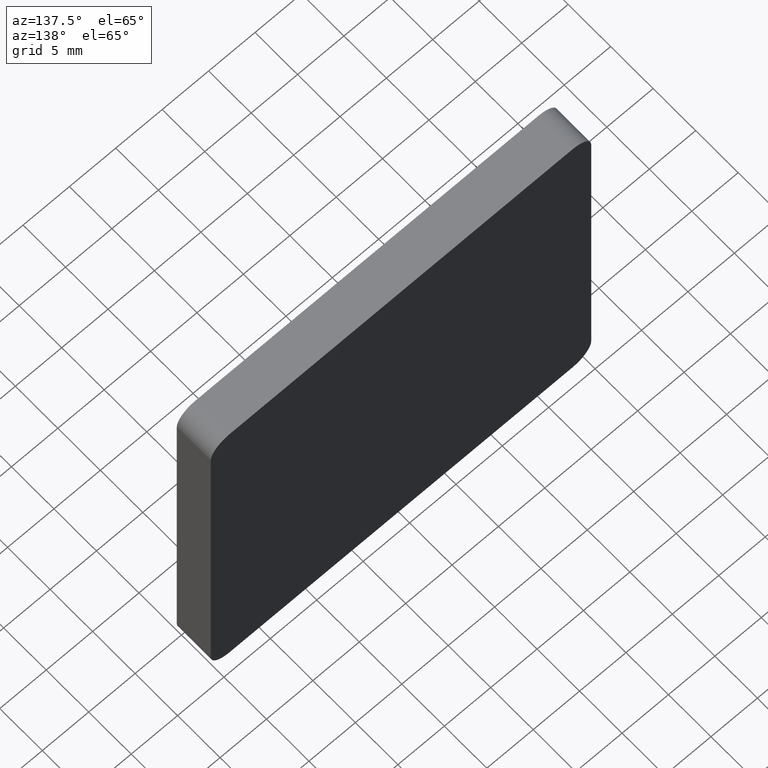
[diagram: clean part render]
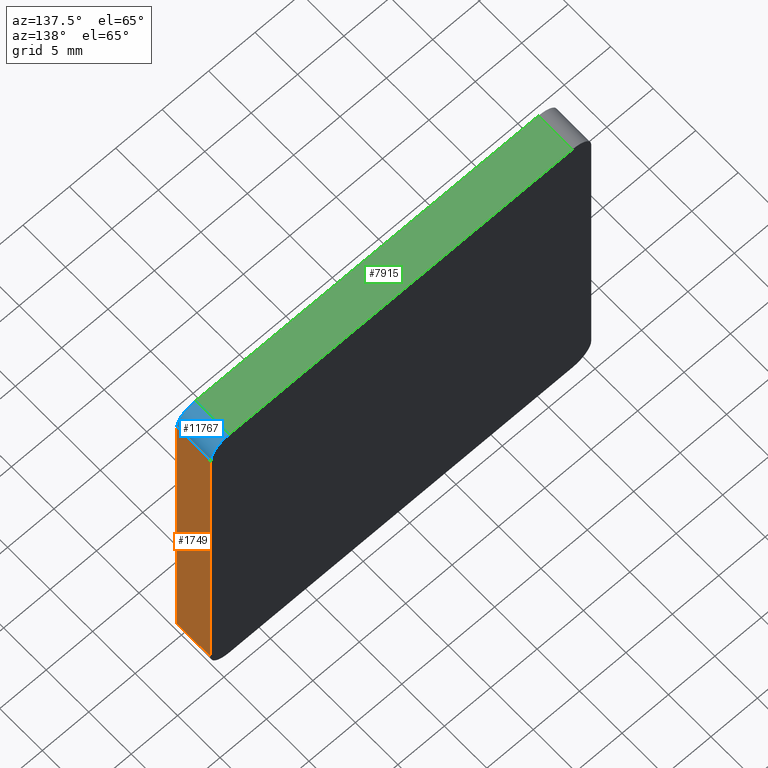
[diagram: same view with three faces highlighted in distinct colors, each labeled with its STEP entity id]
A machine part, auxiliary view with three faces highlighted in distinct colors.
Their STEP definitions:

[orange] entity #1749 — the highlighted planar face has unit normal (-1, 0, 0).
#103 = VERTEX_POINT ( 'NONE', #11090 ) ;
#621 = EDGE_CURVE ( 'NONE', #13598, #13920, #4240, .T. ) ;
#754 = FACE_OUTER_BOUND ( 'NONE', #8079, .T. ) ;
#1327 = CARTESIAN_POINT ( 'NONE',  ( 20.49999999999999645, 4.000000000000000000, -20.49999999999999645 ) ) ;
#1749 = ADVANCED_FACE ( 'NONE', ( #754 ), #2487, .F. ) ;
#2051 = DIRECTION ( 'NONE',  ( -1.692413147294445970E-16, -0.000000000000000000, -1.000000000000000000 ) ) ;
#2487 = PLANE ( 'NONE',  #14702 ) ;
#2649 = EDGE_CURVE ( 'NONE', #103, #13598, #2898, .T. ) ;
#2898 = LINE ( 'NONE', #11364, #4184 ) ;
#3138 = DIRECTION ( 'NONE',  ( 0.000000000000000000, -1.000000000000000000, 0.000000000000000000 ) ) ;
#3246 = CARTESIAN_POINT ( 'NONE',  ( 20.49999999999999645, 4.000000000000000000, -18.49999999999999645 ) ) ;
#4184 = VECTOR ( 'NONE', #6819, 1000.000000000000000 ) ;
#4240 = LINE ( 'NONE', #3246, #5519 ) ;
#5109 = VECTOR ( 'NONE', #2051, 1000.000000000000000 ) ;
#5519 = VECTOR ( 'NONE', #13622, 1000.000000000000000 ) ;
#5705 = ORIENTED_EDGE ( 'NONE', *, *, #2649, .T. ) ;
#6224 = LINE ( 'NONE', #12625, #13346 ) ;
#6819 = DIRECTION ( 'NONE',  ( -1.692413147294445970E-16, -0.000000000000000000, -1.000000000000000000 ) ) ;
#7132 = ORIENTED_EDGE ( 'NONE', *, *, #11552, .T. ) ;
#7249 = DIRECTION ( 'NONE',  ( 1.692413147294445970E-16, 0.000000000000000000, 1.000000000000000000 ) ) ;
#7939 = CARTESIAN_POINT ( 'NONE',  ( 20.49999999999999645, 0.000000000000000000, -18.49999999999999645 ) ) ;
#8079 = EDGE_LOOP ( 'NONE', ( #5705, #15005, #14323, #7132 ) ) ;
#8830 = CARTESIAN_POINT ( 'NONE',  ( 20.49999999999999645, 4.000000000000000000, -20.49999999999999645 ) ) ;
#9686 = VERTEX_POINT ( 'NONE', #11786 ) ;
#10746 = EDGE_CURVE ( 'NONE', #9686, #13920, #13517, .T. ) ;
#11090 = CARTESIAN_POINT ( 'NONE',  ( 20.50000000000000355, 0.000000000000000000, 18.50000000000000355 ) ) ;
#11235 = CARTESIAN_POINT ( 'NONE',  ( 20.49999999999999645, 4.000000000000000000, -18.49999999999999645 ) ) ;
#11364 = CARTESIAN_POINT ( 'NONE',  ( 20.49999999999999645, 0.000000000000000000, -20.49999999999999645 ) ) ;
#11552 = EDGE_CURVE ( 'NONE', #9686, #103, #6224, .T. ) ;
#11786 = CARTESIAN_POINT ( 'NONE',  ( 20.50000000000000355, 4.000000000000000000, 18.50000000000000355 ) ) ;
#12625 = CARTESIAN_POINT ( 'NONE',  ( 20.50000000000000355, 4.000000000000000000, 18.50000000000000355 ) ) ;
#13346 = VECTOR ( 'NONE', #3138, 1000.000000000000000 ) ;
#13517 = LINE ( 'NONE', #8830, #5109 ) ;
#13598 = VERTEX_POINT ( 'NONE', #7939 ) ;
#13622 = DIRECTION ( 'NONE',  ( -0.000000000000000000, 1.000000000000000000, -0.000000000000000000 ) ) ;
#13920 = VERTEX_POINT ( 'NONE', #11235 ) ;
#14233 = DIRECTION ( 'NONE',  ( -1.000000000000000000, 0.000000000000000000, 1.692413147294445970E-16 ) ) ;
#14323 = ORIENTED_EDGE ( 'NONE', *, *, #10746, .F. ) ;
#14702 = AXIS2_PLACEMENT_3D ( 'NONE', #1327, #14233, #7249 ) ;
#15005 = ORIENTED_EDGE ( 'NONE', *, *, #621, .T. ) ;

[blue] entity #11767 — the highlighted cylindrical surface (edge-blend (fillet) strip) has radius 2 mm, axis along (0, -1, 0).
#3 = EDGE_CURVE ( 'NONE', #3946, #9686, #14090, .T. ) ;
#91 = CARTESIAN_POINT ( 'NONE',  ( 18.50000000000000355, 0.000000000000000000, 20.50000000000000355 ) ) ;
#103 = VERTEX_POINT ( 'NONE', #11090 ) ;
#288 = CARTESIAN_POINT ( 'NONE',  ( 18.50000000000000355, 4.000000000000000000, 18.50000000000000355 ) ) ;
#1268 = CYLINDRICAL_SURFACE ( 'NONE', #13047, 2.000000000000001776 ) ;
#1495 = DIRECTION ( 'NONE',  ( 0.000000000000000000, 0.000000000000000000, 1.000000000000000000 ) ) ;
#2405 = DIRECTION ( 'NONE',  ( 0.000000000000000000, 0.000000000000000000, -1.000000000000000000 ) ) ;
#2556 = CARTESIAN_POINT ( 'NONE',  ( 18.50000000000000355, 4.000000000000000000, 20.50000000000000355 ) ) ;
#2811 = EDGE_CURVE ( 'NONE', #7274, #3946, #11475, .T. ) ;
#3138 = DIRECTION ( 'NONE',  ( 0.000000000000000000, -1.000000000000000000, 0.000000000000000000 ) ) ;
#3653 = ORIENTED_EDGE ( 'NONE', *, *, #12659, .F. ) ;
#3946 = VERTEX_POINT ( 'NONE', #2556 ) ;
#4821 = DIRECTION ( 'NONE',  ( -0.000000000000000000, -1.000000000000000000, -0.000000000000000000 ) ) ;
#4910 = VECTOR ( 'NONE', #13717, 1000.000000000000000 ) ;
#4968 = CARTESIAN_POINT ( 'NONE',  ( 18.50000000000000355, 4.000000000000000000, 18.50000000000000355 ) ) ;
#5470 = EDGE_LOOP ( 'NONE', ( #11571, #8715, #3653, #11813 ) ) ;
#5944 = CARTESIAN_POINT ( 'NONE',  ( 18.50000000000000355, 0.000000000000000000, 18.50000000000000355 ) ) ;
#5990 = DIRECTION ( 'NONE',  ( 0.000000000000000000, 0.000000000000000000, 1.000000000000000000 ) ) ;
#6224 = LINE ( 'NONE', #12625, #13346 ) ;
#7118 = FACE_OUTER_BOUND ( 'NONE', #5470, .T. ) ;
#7274 = VERTEX_POINT ( 'NONE', #91 ) ;
#8715 = ORIENTED_EDGE ( 'NONE', *, *, #2811, .F. ) ;
#9122 = AXIS2_PLACEMENT_3D ( 'NONE', #288, #12819, #1495 ) ;
#9563 = DIRECTION ( 'NONE',  ( 0.000000000000000000, -1.000000000000000000, 0.000000000000000000 ) ) ;
#9686 = VERTEX_POINT ( 'NONE', #11786 ) ;
#11090 = CARTESIAN_POINT ( 'NONE',  ( 20.50000000000000355, 0.000000000000000000, 18.50000000000000355 ) ) ;
#11449 = CARTESIAN_POINT ( 'NONE',  ( 18.50000000000000355, 4.000000000000000000, 20.50000000000000355 ) ) ;
#11475 = LINE ( 'NONE', #11449, #4910 ) ;
#11552 = EDGE_CURVE ( 'NONE', #9686, #103, #6224, .T. ) ;
#11571 = ORIENTED_EDGE ( 'NONE', *, *, #3, .F. ) ;
#11767 = ADVANCED_FACE ( 'NONE', ( #7118 ), #1268, .T. ) ;
#11786 = CARTESIAN_POINT ( 'NONE',  ( 20.50000000000000355, 4.000000000000000000, 18.50000000000000355 ) ) ;
#11813 = ORIENTED_EDGE ( 'NONE', *, *, #11552, .F. ) ;
#12625 = CARTESIAN_POINT ( 'NONE',  ( 20.50000000000000355, 4.000000000000000000, 18.50000000000000355 ) ) ;
#12659 = EDGE_CURVE ( 'NONE', #103, #7274, #13326, .T. ) ;
#12819 = DIRECTION ( 'NONE',  ( 0.000000000000000000, 1.000000000000000000, 0.000000000000000000 ) ) ;
#13047 = AXIS2_PLACEMENT_3D ( 'NONE', #4968, #9563, #2405 ) ;
#13326 = CIRCLE ( 'NONE', #13573, 2.000000000000001776 ) ;
#13346 = VECTOR ( 'NONE', #3138, 1000.000000000000000 ) ;
#13573 = AXIS2_PLACEMENT_3D ( 'NONE', #5944, #4821, #5990 ) ;
#13717 = DIRECTION ( 'NONE',  ( -0.000000000000000000, 1.000000000000000000, -0.000000000000000000 ) ) ;
#14090 = CIRCLE ( 'NONE', #9122, 2.000000000000001776 ) ;

[green] entity #7915 — the highlighted planar face has unit normal (0, 0, -1).
#91 = CARTESIAN_POINT ( 'NONE',  ( 18.50000000000000355, 0.000000000000000000, 20.50000000000000355 ) ) ;
#649 = ORIENTED_EDGE ( 'NONE', *, *, #13510, .T. ) ;
#1155 = ORIENTED_EDGE ( 'NONE', *, *, #2811, .T. ) ;
#1429 = VECTOR ( 'NONE', #4389, 1000.000000000000000 ) ;
#2556 = CARTESIAN_POINT ( 'NONE',  ( 18.50000000000000355, 4.000000000000000000, 20.50000000000000355 ) ) ;
#2811 = EDGE_CURVE ( 'NONE', #7274, #3946, #11475, .T. ) ;
#2988 = CARTESIAN_POINT ( 'NONE',  ( -18.49999999999999645, 4.000000000000000000, 20.50000000000000355 ) ) ;
#3309 = ORIENTED_EDGE ( 'NONE', *, *, #13156, .F. ) ;
#3636 = LINE ( 'NONE', #9991, #9669 ) ;
#3946 = VERTEX_POINT ( 'NONE', #2556 ) ;
#4136 = PLANE ( 'NONE',  #11460 ) ;
#4389 = DIRECTION ( 'NONE',  ( 0.000000000000000000, -1.000000000000000000, 0.000000000000000000 ) ) ;
#4910 = VECTOR ( 'NONE', #13717, 1000.000000000000000 ) ;
#5327 = CARTESIAN_POINT ( 'NONE',  ( -20.49999999999999645, 4.000000000000000000, 20.50000000000000355 ) ) ;
#5359 = FACE_OUTER_BOUND ( 'NONE', #13611, .T. ) ;
#6191 = LINE ( 'NONE', #11787, #14754 ) ;
#7274 = VERTEX_POINT ( 'NONE', #91 ) ;
#7772 = DIRECTION ( 'NONE',  ( 1.000000000000000000, 0.000000000000000000, 0.000000000000000000 ) ) ;
#7902 = ORIENTED_EDGE ( 'NONE', *, *, #14756, .T. ) ;
#7915 = ADVANCED_FACE ( 'NONE', ( #5359 ), #4136, .F. ) ;
#8824 = DIRECTION ( 'NONE',  ( 0.000000000000000000, 0.000000000000000000, -1.000000000000000000 ) ) ;
#9669 = VECTOR ( 'NONE', #7772, 1000.000000000000000 ) ;
#9991 = CARTESIAN_POINT ( 'NONE',  ( -20.49999999999999645, 0.000000000000000000, 20.50000000000000355 ) ) ;
#11377 = CARTESIAN_POINT ( 'NONE',  ( -18.49999999999999645, 4.000000000000000000, 20.50000000000000355 ) ) ;
#11449 = CARTESIAN_POINT ( 'NONE',  ( 18.50000000000000355, 4.000000000000000000, 20.50000000000000355 ) ) ;
#11460 = AXIS2_PLACEMENT_3D ( 'NONE', #5327, #8824, #13486 ) ;
#11475 = LINE ( 'NONE', #11449, #4910 ) ;
#11505 = VERTEX_POINT ( 'NONE', #2988 ) ;
#11787 = CARTESIAN_POINT ( 'NONE',  ( -20.49999999999999645, 4.000000000000000000, 20.50000000000000355 ) ) ;
#12029 = LINE ( 'NONE', #11377, #1429 ) ;
#13156 = EDGE_CURVE ( 'NONE', #11505, #3946, #6191, .T. ) ;
#13465 = CARTESIAN_POINT ( 'NONE',  ( -18.49999999999999645, 0.000000000000000000, 20.50000000000000355 ) ) ;
#13486 = DIRECTION ( 'NONE',  ( -1.000000000000000000, 0.000000000000000000, -0.000000000000000000 ) ) ;
#13510 = EDGE_CURVE ( 'NONE', #11505, #14713, #12029, .T. ) ;
#13611 = EDGE_LOOP ( 'NONE', ( #3309, #649, #7902, #1155 ) ) ;
#13717 = DIRECTION ( 'NONE',  ( -0.000000000000000000, 1.000000000000000000, -0.000000000000000000 ) ) ;
#14087 = DIRECTION ( 'NONE',  ( 1.000000000000000000, 0.000000000000000000, 0.000000000000000000 ) ) ;
#14713 = VERTEX_POINT ( 'NONE', #13465 ) ;
#14754 = VECTOR ( 'NONE', #14087, 1000.000000000000000 ) ;
#14756 = EDGE_CURVE ( 'NONE', #14713, #7274, #3636, .T. ) ;